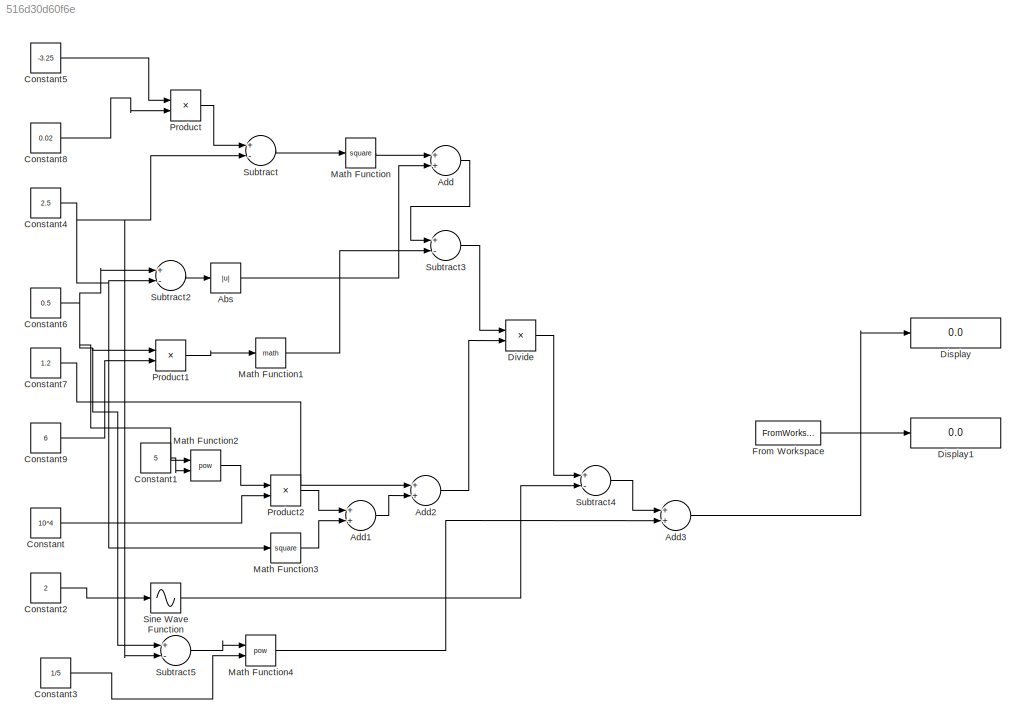
MODEL slx_516d30d60f6e
KIND model
CONFIG AbsTol = auto
CONFIG EnableMultiTasking = off
CONFIG FixedStep = auto
CONFIG InitFcn = f
CONFIG MaxStep = auto
CONFIG MinStep = auto
CONFIG RelTol = 1e-3
CONFIG SampleTimeConstraint = Unconstrained
CONFIG Solver = VariableStepAuto
CONFIG SolverName = VariableStepAuto
CONFIG StartTime = 0.0
CONFIG StopTime = 10.0
BLOCK [Abs] Abs
  SaturateOnIntegerOverflow = off
BLOCK [Sum] Add
  InputSameDT = off
  OutDataTypeStr = Inherit: Inherit via internal rule
  Ports = [2, 1]
  SaturateOnIntegerOverflow = off
BLOCK [Sum] Add1
  InputSameDT = off
  OutDataTypeStr = Inherit: Inherit via internal rule
  Ports = [2, 1]
  SaturateOnIntegerOverflow = off
BLOCK [Sum] Add2
  InputSameDT = off
  OutDataTypeStr = Inherit: Inherit via internal rule
  Ports = [2, 1]
  SaturateOnIntegerOverflow = off
BLOCK [Sum] Add3
  InputSameDT = off
  OutDataTypeStr = Inherit: Inherit via internal rule
  Ports = [2, 1]
  SaturateOnIntegerOverflow = off
BLOCK [Constant] Constant
  Value = 10^4
BLOCK [Constant] Constant1
  Value = 5
BLOCK [Constant] Constant2
  Value = 2
BLOCK [Constant] Constant3
  Value = 1/5
BLOCK [Constant] Constant4
  Value = 2.5
BLOCK [Constant] Constant5
  Value = -3.25
BLOCK [Constant] Constant6
  Value = 0.5
BLOCK [Constant] Constant7
  Value = 1.2
BLOCK [Constant] Constant8
  Value = 0.02
BLOCK [Constant] Constant9
  Value = 6
BLOCK [Display] Display
  Decimation = 1
  Format = long
  Ports = [1]
BLOCK [Display] Display1
  Decimation = 1
  Format = long
  Ports = [1]
BLOCK [Product] Divide
  InputSameDT = off
  Inputs = */
  OutDataTypeStr = Inherit: Inherit via internal rule
  Ports = [2, 1]
  RndMeth = Floor
  SaturateOnIntegerOverflow = off
BLOCK [FromWorkspace] From Workspace
  Interpolate = off
  OutputAfterFinalValue = Holding final value
  VariableName = simin
BLOCK [Math] Math Function
  Operator = square
  Ports = [1, 1]
BLOCK [Math] Math Function1
  Ports = [1, 1]
BLOCK [Math] Math Function2
  Operator = pow
  Ports = [2, 1]
BLOCK [Math] Math Function3
  Operator = square
  Ports = [1, 1]
BLOCK [Math] Math Function4
  Operator = pow
  Ports = [2, 1]
BLOCK [Product] Product
  InputSameDT = off
  OutDataTypeStr = Inherit: Inherit via internal rule
  Ports = [2, 1]
  RndMeth = Floor
  SaturateOnIntegerOverflow = off
BLOCK [Product] Product1
  InputSameDT = off
  OutDataTypeStr = Inherit: Inherit via internal rule
  Ports = [2, 1]
  RndMeth = Floor
  SaturateOnIntegerOverflow = off
BLOCK [Product] Product2
  InputSameDT = off
  OutDataTypeStr = Inherit: Inherit via internal rule
  Ports = [2, 1]
  RndMeth = Floor
  SaturateOnIntegerOverflow = off
BLOCK [Sin] Sine Wave Function
  Ports = [1, 1]
  SampleTime = 0
  TimeSource = Use external signal
BLOCK [Sum] Subtract
  InputSameDT = off
  Inputs = +-
  OutDataTypeStr = Inherit: Inherit via internal rule
  Ports = [2, 1]
  SaturateOnIntegerOverflow = off
BLOCK [Sum] Subtract2
  InputSameDT = off
  Inputs = +-
  OutDataTypeStr = Inherit: Inherit via internal rule
  Ports = [2, 1]
  SaturateOnIntegerOverflow = off
BLOCK [Sum] Subtract3
  InputSameDT = off
  Inputs = +-
  OutDataTypeStr = Inherit: Inherit via internal rule
  Ports = [2, 1]
  SaturateOnIntegerOverflow = off
BLOCK [Sum] Subtract4
  InputSameDT = off
  Inputs = +-
  OutDataTypeStr = Inherit: Inherit via internal rule
  Ports = [2, 1]
  SaturateOnIntegerOverflow = off
BLOCK [Sum] Subtract5
  InputSameDT = off
  Inputs = +-
  OutDataTypeStr = Inherit: Inherit via internal rule
  Ports = [2, 1]
  SaturateOnIntegerOverflow = off
LINE Abs:1 -> Add:2
LINE Add1:1 -> Add2:2
LINE Add2:1 -> Divide:2
LINE Add3:1 -> Display:1
LINE Add:1 -> Subtract3:1
LINE Constant1:1 -> Math Function2:2
LINE Constant2:1 -> Sine Wave Function:1
LINE Constant3:1 -> Math Function4:2
NET Constant4:1 -> Math Function3:1, Subtract2:2, Subtract5:2, Subtract:2
LINE Constant5:1 -> Product:1
NET Constant6:1 -> Math Function2:1, Product1:1, Subtract2:1, Subtract5:1
LINE Constant7:1 -> Add2:1
LINE Constant8:1 -> Product:2
LINE Constant9:1 -> Product1:2
LINE Constant:1 -> Product2:2
LINE Divide:1 -> Subtract4:1
LINE From Workspace:1 -> Display1:1
LINE Math Function1:1 -> Subtract3:2
LINE Math Function2:1 -> Product2:1
LINE Math Function3:1 -> Add1:2
LINE Math Function4:1 -> Add3:2
LINE Math Function:1 -> Add:1
LINE Product1:1 -> Math Function1:1
LINE Product2:1 -> Add1:1
LINE Product:1 -> Subtract:1
LINE Sine Wave Function:1 -> Subtract4:2
LINE Subtract2:1 -> Abs:1
LINE Subtract3:1 -> Divide:1
LINE Subtract4:1 -> Add3:1
LINE Subtract5:1 -> Math Function4:1
LINE Subtract:1 -> Math Function:1
note: NET lines group one-source signal fan-out (src -> all destinations, sorted); 1:1 wires keep LINE
